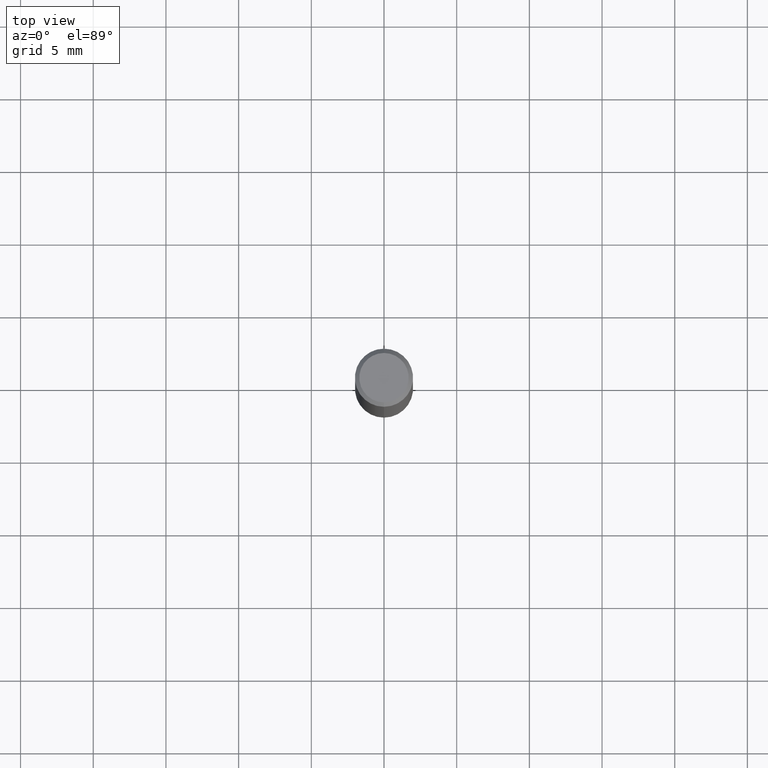
[diagram: clean part render]
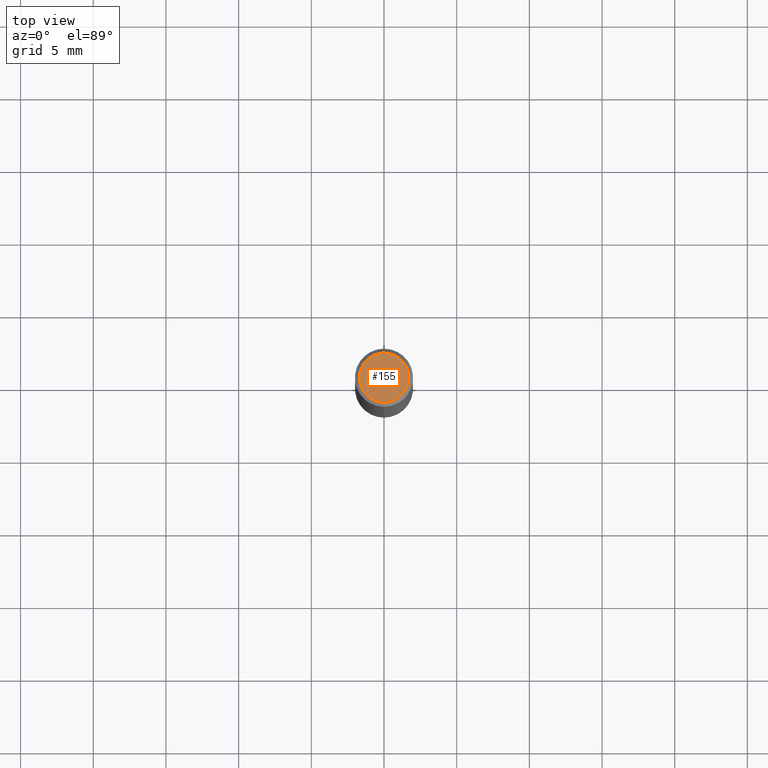
[diagram: same view with one face highlighted and labeled with its STEP entity id]
A machine part, top view. The second image highlights one B-rep face of the part: STEP entity #155.
In plain terms, the highlighted planar face has unit normal (-0, 0, 1).
Its self-contained STEP definition (entity closure, byte-faithful):
#155=ADVANCED_FACE('',(#394),#395,.T.);
#169=VERTEX_POINT('',#410);
#295=EDGE_CURVE('',#169,#311,#553,.T.);
#311=VERTEX_POINT('',#571);
#353=EDGE_CURVE('',#311,#169,#618,.T.);
#394=FACE_OUTER_BOUND('',#654,.T.);
#395=PLANE('',#655);
#410=CARTESIAN_POINT('',(0.0,1.7,0.00999999999999801));
#553=CIRCLE('',#855,1.7);
#571=CARTESIAN_POINT('',(2.08183080149804E-016,-1.7,0.00999999999999801));
#618=CIRCLE('',#941,1.7);
#654=EDGE_LOOP('',(#979,#980));
#655=AXIS2_PLACEMENT_3D('',#981,#982,#983);
#855=AXIS2_PLACEMENT_3D('',#1180,#1181,#1182);
#941=AXIS2_PLACEMENT_3D('',#1262,#1263,#1264);
#979=ORIENTED_EDGE('',*,*,#295,.F.);
#980=ORIENTED_EDGE('',*,*,#353,.F.);
#981=CARTESIAN_POINT('',(0.0,0.85,0.00999999999999801));
#982=DIRECTION('',(-0.0,0.0,1.0));
#983=DIRECTION('',(0.0,-1.0,0.0));
#1180=CARTESIAN_POINT('',(0.0,0.0,0.00999999999999801));
#1181=DIRECTION('',(0.0,0.0,-1.0));
#1182=DIRECTION('',(0.0,1.0,0.0));
#1262=CARTESIAN_POINT('',(0.0,0.0,0.00999999999999801));
#1263=DIRECTION('',(0.0,0.0,-1.0));
#1264=DIRECTION('',(0.0,1.0,0.0));